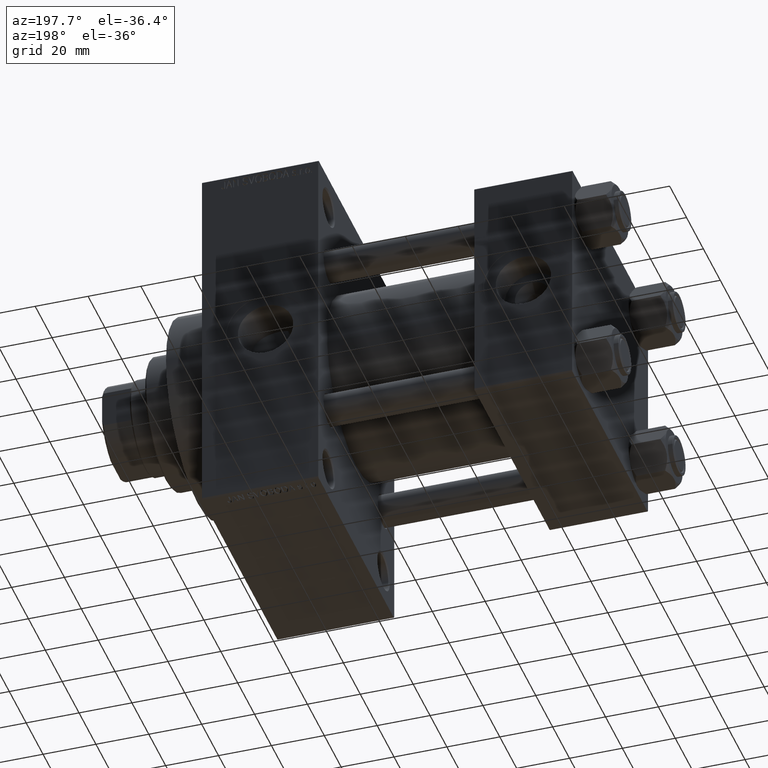
[diagram: clean part render]
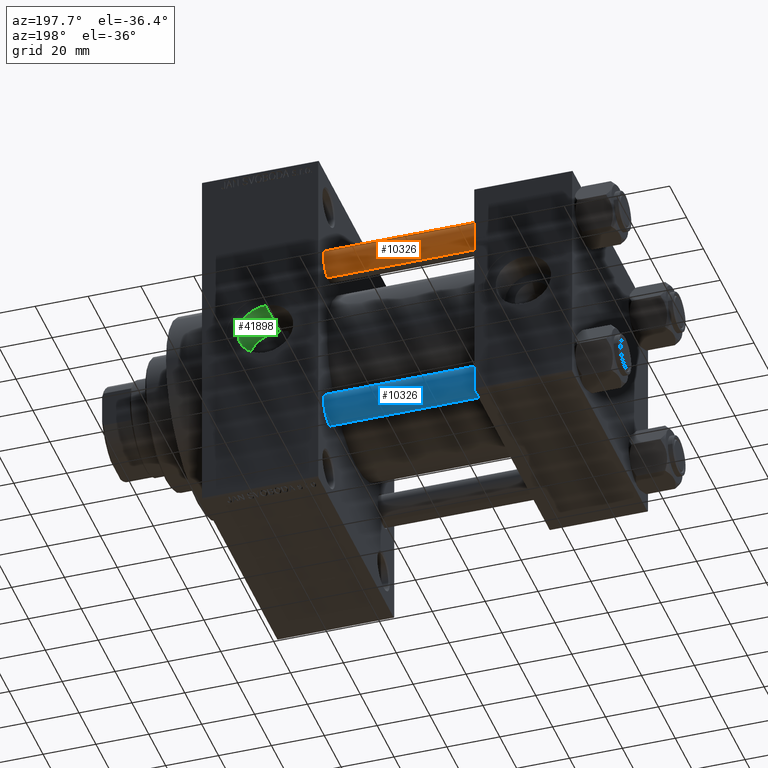
[diagram: same view with three faces highlighted in distinct colors, each labeled with its STEP entity id]
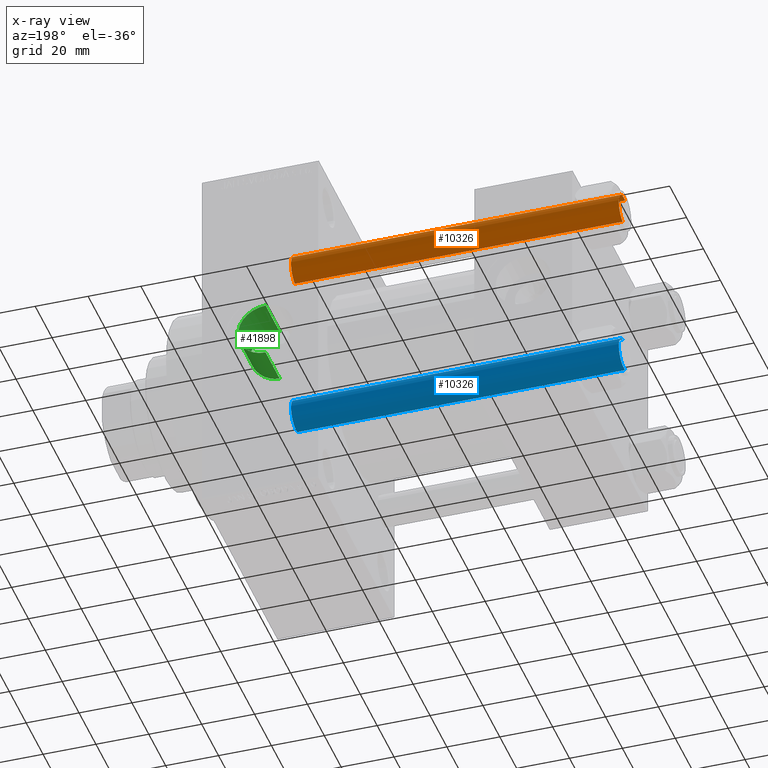
[diagram: x-ray of the same camera — body ghosted, the three highlighted faces saturated]
A machine part, auxiliary view with three faces highlighted in distinct colors.
The next image is the same camera in x-ray (body ghosted, the three faces saturated) — at least one of them is partly hidden behind the body in this view.
Their STEP definitions:

[orange] entity #10326 — the highlighted cylindrical surface (edge-blend (fillet) strip) has radius 6 mm, axis along (-1, -0, 0).
#967 = EDGE_CURVE ( 'NONE', #34737, #13620, #20077, .T. ) ;
#1158 = CARTESIAN_POINT ( 'NONE',  ( -6.000000000000000888, 0.000000000000000000, 125.0000000000000000 ) ) ;
#1859 = DIRECTION ( 'NONE',  ( -0.000000000000000000, -0.000000000000000000, -1.000000000000000000 ) ) ;
#3527 = ORIENTED_EDGE ( 'NONE', *, *, #8652, .T. ) ;
#5830 = FACE_OUTER_BOUND ( 'NONE', #13316, .T. ) ;
#6548 = AXIS2_PLACEMENT_3D ( 'NONE', #12973, #23690, #30395 ) ;
#7094 = VECTOR ( 'NONE', #31538, 1000.000000000000000 ) ;
#8652 = EDGE_CURVE ( 'NONE', #10115, #34737, #9495, .T. ) ;
#8791 = VECTOR ( 'NONE', #1859, 1000.000000000000000 ) ;
#9380 = CARTESIAN_POINT ( 'NONE',  ( 0.000000000000000000, 0.000000000000000000, 124.5000000000000000 ) ) ;
#9495 = CIRCLE ( 'NONE', #10258, 6.000000000000000888 ) ;
#10115 = VERTEX_POINT ( 'NONE', #20240 ) ;
#10258 = AXIS2_PLACEMENT_3D ( 'NONE', #9380, #23922, #38509 ) ;
#10326 = ADVANCED_FACE ( 'NONE', ( #5830 ), #27035, .T. ) ;
#11024 = ORIENTED_EDGE ( 'NONE', *, *, #34959, .F. ) ;
#11297 = ORIENTED_EDGE ( 'NONE', *, *, #11779, .T. ) ;
#11779 = EDGE_CURVE ( 'NONE', #13620, #24682, #22518, .T. ) ;
#12973 = CARTESIAN_POINT ( 'NONE',  ( 0.000000000000000000, 0.000000000000000000, 125.0000000000000000 ) ) ;
#13316 = EDGE_LOOP ( 'NONE', ( #3527, #39089, #11297, #11024 ) ) ;
#13620 = VERTEX_POINT ( 'NONE', #46528 ) ;
#19686 = DIRECTION ( 'NONE',  ( -0.000000000000000000, -0.000000000000000000, 1.000000000000000000 ) ) ;
#20077 = LINE ( 'NONE', #27717, #7094 ) ;
#20240 = CARTESIAN_POINT ( 'NONE',  ( -6.000000000000000888, 0.000000000000000000, 124.5000000000000000 ) ) ;
#21026 = AXIS2_PLACEMENT_3D ( 'NONE', #33795, #19686, #34263 ) ;
#21634 = CARTESIAN_POINT ( 'NONE',  ( -6.000000000000000888, 0.000000000000000000, 0.4999999999999865663 ) ) ;
#22518 = CIRCLE ( 'NONE', #21026, 6.000000000000000888 ) ;
#23690 = DIRECTION ( 'NONE',  ( -0.000000000000000000, -0.000000000000000000, -1.000000000000000000 ) ) ;
#23922 = DIRECTION ( 'NONE',  ( 0.000000000000000000, 0.000000000000000000, -1.000000000000000000 ) ) ;
#24562 = CARTESIAN_POINT ( 'NONE',  ( 6.000000000000000888, 7.347880794884120722E-16, 124.5000000000000000 ) ) ;
#24682 = VERTEX_POINT ( 'NONE', #21634 ) ;
#27035 = CYLINDRICAL_SURFACE ( 'NONE', #6548, 6.000000000000000888 ) ;
#27717 = CARTESIAN_POINT ( 'NONE',  ( 6.000000000000000888, 7.347880794884120722E-16, 125.0000000000000000 ) ) ;
#30395 = DIRECTION ( 'NONE',  ( -1.000000000000000000, 0.000000000000000000, 0.000000000000000000 ) ) ;
#31538 = DIRECTION ( 'NONE',  ( -0.000000000000000000, -0.000000000000000000, -1.000000000000000000 ) ) ;
#33795 = CARTESIAN_POINT ( 'NONE',  ( 0.000000000000000000, 0.000000000000000000, 0.4999999999999865663 ) ) ;
#34263 = DIRECTION ( 'NONE',  ( 1.000000000000000000, 0.000000000000000000, 0.000000000000000000 ) ) ;
#34737 = VERTEX_POINT ( 'NONE', #24562 ) ;
#34959 = EDGE_CURVE ( 'NONE', #10115, #24682, #44616, .T. ) ;
#38509 = DIRECTION ( 'NONE',  ( 1.000000000000000000, 0.000000000000000000, 0.000000000000000000 ) ) ;
#39089 = ORIENTED_EDGE ( 'NONE', *, *, #967, .T. ) ;
#44616 = LINE ( 'NONE', #1158, #8791 ) ;
#46528 = CARTESIAN_POINT ( 'NONE',  ( 6.000000000000000888, 7.347880794884120722E-16, 0.4999999999999865663 ) ) ;

[blue] entity #10326 — the highlighted cylindrical surface (edge-blend (fillet) strip) has radius 6 mm, axis along (1, -0, 0).
#967 = EDGE_CURVE ( 'NONE', #34737, #13620, #20077, .T. ) ;
#1158 = CARTESIAN_POINT ( 'NONE',  ( -6.000000000000000888, 0.000000000000000000, 125.0000000000000000 ) ) ;
#1859 = DIRECTION ( 'NONE',  ( -0.000000000000000000, -0.000000000000000000, -1.000000000000000000 ) ) ;
#3527 = ORIENTED_EDGE ( 'NONE', *, *, #8652, .T. ) ;
#5830 = FACE_OUTER_BOUND ( 'NONE', #13316, .T. ) ;
#6548 = AXIS2_PLACEMENT_3D ( 'NONE', #12973, #23690, #30395 ) ;
#7094 = VECTOR ( 'NONE', #31538, 1000.000000000000000 ) ;
#8652 = EDGE_CURVE ( 'NONE', #10115, #34737, #9495, .T. ) ;
#8791 = VECTOR ( 'NONE', #1859, 1000.000000000000000 ) ;
#9380 = CARTESIAN_POINT ( 'NONE',  ( 0.000000000000000000, 0.000000000000000000, 124.5000000000000000 ) ) ;
#9495 = CIRCLE ( 'NONE', #10258, 6.000000000000000888 ) ;
#10115 = VERTEX_POINT ( 'NONE', #20240 ) ;
#10258 = AXIS2_PLACEMENT_3D ( 'NONE', #9380, #23922, #38509 ) ;
#10326 = ADVANCED_FACE ( 'NONE', ( #5830 ), #27035, .T. ) ;
#11024 = ORIENTED_EDGE ( 'NONE', *, *, #34959, .F. ) ;
#11297 = ORIENTED_EDGE ( 'NONE', *, *, #11779, .T. ) ;
#11779 = EDGE_CURVE ( 'NONE', #13620, #24682, #22518, .T. ) ;
#12973 = CARTESIAN_POINT ( 'NONE',  ( 0.000000000000000000, 0.000000000000000000, 125.0000000000000000 ) ) ;
#13316 = EDGE_LOOP ( 'NONE', ( #3527, #39089, #11297, #11024 ) ) ;
#13620 = VERTEX_POINT ( 'NONE', #46528 ) ;
#19686 = DIRECTION ( 'NONE',  ( -0.000000000000000000, -0.000000000000000000, 1.000000000000000000 ) ) ;
#20077 = LINE ( 'NONE', #27717, #7094 ) ;
#20240 = CARTESIAN_POINT ( 'NONE',  ( -6.000000000000000888, 0.000000000000000000, 124.5000000000000000 ) ) ;
#21026 = AXIS2_PLACEMENT_3D ( 'NONE', #33795, #19686, #34263 ) ;
#21634 = CARTESIAN_POINT ( 'NONE',  ( -6.000000000000000888, 0.000000000000000000, 0.4999999999999865663 ) ) ;
#22518 = CIRCLE ( 'NONE', #21026, 6.000000000000000888 ) ;
#23690 = DIRECTION ( 'NONE',  ( -0.000000000000000000, -0.000000000000000000, -1.000000000000000000 ) ) ;
#23922 = DIRECTION ( 'NONE',  ( 0.000000000000000000, 0.000000000000000000, -1.000000000000000000 ) ) ;
#24562 = CARTESIAN_POINT ( 'NONE',  ( 6.000000000000000888, 7.347880794884120722E-16, 124.5000000000000000 ) ) ;
#24682 = VERTEX_POINT ( 'NONE', #21634 ) ;
#27035 = CYLINDRICAL_SURFACE ( 'NONE', #6548, 6.000000000000000888 ) ;
#27717 = CARTESIAN_POINT ( 'NONE',  ( 6.000000000000000888, 7.347880794884120722E-16, 125.0000000000000000 ) ) ;
#30395 = DIRECTION ( 'NONE',  ( -1.000000000000000000, 0.000000000000000000, 0.000000000000000000 ) ) ;
#31538 = DIRECTION ( 'NONE',  ( -0.000000000000000000, -0.000000000000000000, -1.000000000000000000 ) ) ;
#33795 = CARTESIAN_POINT ( 'NONE',  ( 0.000000000000000000, 0.000000000000000000, 0.4999999999999865663 ) ) ;
#34263 = DIRECTION ( 'NONE',  ( 1.000000000000000000, 0.000000000000000000, 0.000000000000000000 ) ) ;
#34737 = VERTEX_POINT ( 'NONE', #24562 ) ;
#34959 = EDGE_CURVE ( 'NONE', #10115, #24682, #44616, .T. ) ;
#38509 = DIRECTION ( 'NONE',  ( 1.000000000000000000, 0.000000000000000000, 0.000000000000000000 ) ) ;
#39089 = ORIENTED_EDGE ( 'NONE', *, *, #967, .T. ) ;
#44616 = LINE ( 'NONE', #1158, #8791 ) ;
#46528 = CARTESIAN_POINT ( 'NONE',  ( 6.000000000000000888, 7.347880794884120722E-16, 0.4999999999999865663 ) ) ;

[green] entity #41898 — the highlighted cylindrical surface (edge-blend (fillet) strip) has radius 10.48 mm, axis along (0, 1, 0).
#228 = CARTESIAN_POINT ( 'NONE',  ( 116.0000000000000000, 28.10995553180402595, -10.48000000000000220 ) ) ;
#1271 = CARTESIAN_POINT ( 'NONE',  ( 126.4119334145255067, 29.97602025324989583, 1.377942522026811778 ) ) ;
#1728 = CARTESIAN_POINT ( 'NONE',  ( 123.8917107446759474, 29.19304966441860927, 6.928961920144671716 ) ) ;
#1836 = FACE_OUTER_BOUND ( 'NONE', #19762, .T. ) ;
#2215 = CARTESIAN_POINT ( 'NONE',  ( 116.3438730021886443, 28.10995553180402595, -10.48000000000000753 ) ) ;
#2540 = VERTEX_POINT ( 'NONE', #34241 ) ;
#2559 = DIRECTION ( 'NONE',  ( -0.000000000000000000, 1.000000000000000000, -0.000000000000000000 ) ) ;
#3273 = LINE ( 'NONE', #35963, #33228 ) ;
#4851 = CARTESIAN_POINT ( 'NONE',  ( 122.1182821996174681, 28.76674563627389247, 8.515509313587612539 ) ) ;
#5015 = CARTESIAN_POINT ( 'NONE',  ( 116.0000000000000000, 44.80000000000001847, -2.198945251238207943E-15 ) ) ;
#5089 = CARTESIAN_POINT ( 'NONE',  ( 118.3951681404155210, 28.20981294759199898, 10.20840888712403682 ) ) ;
#5180 = CIRCLE ( 'NONE', #47147, 10.48000000000000043 ) ;
#5323 = CARTESIAN_POINT ( 'NONE',  ( 117.3845237662672076, 28.13600843276157448, 10.41084356096757446 ) ) ;
#5556 = CARTESIAN_POINT ( 'NONE',  ( 121.2538723618131655, 28.59517209534081417, -9.074427182106704848 ) ) ;
#5799 = CARTESIAN_POINT ( 'NONE',  ( 116.0000000000000000, 28.10995553180402595, -10.48000000000000220 ) ) ;
#6176 = DIRECTION ( 'NONE',  ( -0.000000000000000000, 1.000000000000000000, -0.000000000000000000 ) ) ;
#6270 = CARTESIAN_POINT ( 'NONE',  ( 123.6452155958480859, 29.13013352623691787, -7.176134000890634468 ) ) ;
#7978 = CARTESIAN_POINT ( 'NONE',  ( 120.6664021070156707, 28.48775938261396590, 9.408788335372456402 ) ) ;
#8212 = CARTESIAN_POINT ( 'NONE',  ( 125.9217316417465327, 29.80941683571757395, 3.392461908593601194 ) ) ;
#8432 = CARTESIAN_POINT ( 'NONE',  ( 124.3253861848219373, 29.31464168039805784, 6.402397357205709127 ) ) ;
#8968 = EDGE_CURVE ( 'NONE', #21413, #2540, #24284, .T. ) ;
#9364 = CARTESIAN_POINT ( 'NONE',  ( 125.9399912239310453, 29.81458687334005120, -3.392117035502130840 ) ) ;
#9566 = ORIENTED_EDGE ( 'NONE', *, *, #36628, .T. ) ;
#12228 = CARTESIAN_POINT ( 'NONE',  ( 126.2088621083209432, 29.90629404900236921, 2.393471372070395287 ) ) ;
#12702 = CARTESIAN_POINT ( 'NONE',  ( 119.3944568409847733, 28.30729626029973645, -9.938490869674263095 ) ) ;
#12943 = CARTESIAN_POINT ( 'NONE',  ( 126.1400674918413927, 29.88267782535193717, -2.735376480645546504 ) ) ;
#13349 = ORIENTED_EDGE ( 'NONE', *, *, #8968, .F. ) ;
#14936 = CARTESIAN_POINT ( 'NONE',  ( 116.0000000000000000, 28.10995553180402950, 10.47999999999999865 ) ) ;
#15349 = CARTESIAN_POINT ( 'NONE',  ( 125.4118318432556549, 29.64271601913478094, 4.659776581799506268 ) ) ;
#15811 = CARTESIAN_POINT ( 'NONE',  ( 126.3942240619415855, 29.97012602456189612, -1.382554006488357912 ) ) ;
#15906 = CYLINDRICAL_SURFACE ( 'NONE', #25002, 10.48000000000000043 ) ;
#16266 = CARTESIAN_POINT ( 'NONE',  ( 122.3950967947522912, 28.82709093977712556, 8.309601500369888427 ) ) ;
#16375 = DIRECTION ( 'NONE',  ( 0.000000000000000000, 0.000000000000000000, 1.000000000000000000 ) ) ;
#16980 = CARTESIAN_POINT ( 'NONE',  ( 122.3991954878801067, 28.82380471925722532, -8.327394824909754689 ) ) ;
#18678 = ORIENTED_EDGE ( 'NONE', *, *, #41668, .T. ) ;
#19383 = CARTESIAN_POINT ( 'NONE',  ( 126.4801199113428396, 30.00004188902684987, -0.3416054811791413015 ) ) ;
#19617 = CARTESIAN_POINT ( 'NONE',  ( 118.7290047839929912, 28.24020088778831905, 10.12435328880594554 ) ) ;
#19762 = EDGE_LOOP ( 'NONE', ( #13349, #47246, #9566, #18678 ) ) ;
#20084 = CARTESIAN_POINT ( 'NONE',  ( 125.0829805892810498, 29.53877363973344572, -5.271871285477989666 ) ) ;
#21036 = CARTESIAN_POINT ( 'NONE',  ( 124.3114165177487820, 29.31220912400723577, -6.392798821075968085 ) ) ;
#21413 = VERTEX_POINT ( 'NONE', #228 ) ;
#22502 = CARTESIAN_POINT ( 'NONE',  ( 125.0902213596345689, 29.54095946462917155, 5.260287319037080245 ) ) ;
#22730 = CARTESIAN_POINT ( 'NONE',  ( 126.4797582609246120, 29.99991555248753272, 0.6941883290317075739 ) ) ;
#22958 = CARTESIAN_POINT ( 'NONE',  ( 125.8054432238869822, 29.77080659644961003, 3.714849565276028276 ) ) ;
#23664 = CARTESIAN_POINT ( 'NONE',  ( 123.8766334625353949, 29.19190493786176432, -6.921428074835843880 ) ) ;
#23900 = CARTESIAN_POINT ( 'NONE',  ( 124.5146658568484668, 29.37067223596217502, -6.119359129450981705 ) ) ;
#24103 = VERTEX_POINT ( 'NONE', #14936 ) ;
#24144 = CARTESIAN_POINT ( 'NONE',  ( 117.3747204287125783, 28.14145658298057029, -10.39517839700973489 ) ) ;
#24284 = LINE ( 'NONE', #38866, #27771 ) ;
#24617 = CARTESIAN_POINT ( 'NONE',  ( 122.9226840027825887, 28.94609101070397728, -7.897476117125369122 ) ) ;
#25002 = AXIS2_PLACEMENT_3D ( 'NONE', #31178, #33830, #16375 ) ;
#26085 = CARTESIAN_POINT ( 'NONE',  ( 119.3905241761370490, 28.31178435317268693, 9.922416159315377016 ) ) ;
#26549 = CARTESIAN_POINT ( 'NONE',  ( 116.0000000000000000, 28.10995553180402950, 10.47999999999999865 ) ) ;
#26697 = DIRECTION ( 'NONE',  ( 0.000000000000000000, 0.000000000000000000, 1.000000000000000000 ) ) ;
#26927 = DIRECTION ( 'NONE',  ( 0.000000000000000000, 1.000000000000000000, 0.000000000000000000 ) ) ;
#27489 = CARTESIAN_POINT ( 'NONE',  ( 121.5495707240801124, 28.65118564949816715, -8.896564878869938298 ) ) ;
#27771 = VECTOR ( 'NONE', #6176, 1000.000000000000000 ) ;
#29903 = CARTESIAN_POINT ( 'NONE',  ( 126.1234663938197968, 29.87716762247597302, 2.732212426824471851 ) ) ;
#31136 = CARTESIAN_POINT ( 'NONE',  ( 116.0000000000000000, 44.80000000000001847, 10.47999999999999865 ) ) ;
#31178 = CARTESIAN_POINT ( 'NONE',  ( 116.0000000000000000, -29.64191626734007201, -2.198945251238207943E-15 ) ) ;
#31544 = CARTESIAN_POINT ( 'NONE',  ( 125.4072711420142809, 29.64123673593073960, -4.670453208736268458 ) ) ;
#33228 = VECTOR ( 'NONE', #2559, 1000.000000000000000 ) ;
#33830 = DIRECTION ( 'NONE',  ( -0.000000000000000000, 1.000000000000000000, -0.000000000000000000 ) ) ;
#33962 = CARTESIAN_POINT ( 'NONE',  ( 126.4630151315455606, 29.99405350600730458, -0.6904084209729824950 ) ) ;
#33992 = VERTEX_POINT ( 'NONE', #31136 ) ;
#34191 = CARTESIAN_POINT ( 'NONE',  ( 122.9218863494081120, 28.94851325491607952, 7.876181147934429916 ) ) ;
#34241 = CARTESIAN_POINT ( 'NONE',  ( 116.0000000000000000, 44.80000000000001847, -10.48000000000000220 ) ) ;
#34421 = CARTESIAN_POINT ( 'NONE',  ( 123.1731662640724210, 29.00983069254146685, 7.647933622233230366 ) ) ;
#35963 = CARTESIAN_POINT ( 'NONE',  ( 116.0000000000000000, -29.64191626734007201, 10.47999999999999865 ) ) ;
#36628 = EDGE_CURVE ( 'NONE', #24103, #33992, #3273, .T. ) ;
#37111 = EDGE_CURVE ( 'NONE', #24103, #21413, #44823, .T. ) ;
#37548 = CARTESIAN_POINT ( 'NONE',  ( 116.6980899380639727, 28.10995553180403661, 10.47999999999999865 ) ) ;
#38248 = CARTESIAN_POINT ( 'NONE',  ( 120.3394417382619395, 28.44122229582507089, -9.545471696213173374 ) ) ;
#38489 = CARTESIAN_POINT ( 'NONE',  ( 120.6483450916582427, 28.49013521307115937, -9.399004808299563862 ) ) ;
#38866 = CARTESIAN_POINT ( 'NONE',  ( 116.0000000000000000, -29.64191626734007201, -10.48000000000000220 ) ) ;
#38965 = CARTESIAN_POINT ( 'NONE',  ( 118.7402809744361321, 28.23506111628061532, -10.13915124372663001 ) ) ;
#40672 = CARTESIAN_POINT ( 'NONE',  ( 121.2662955552271455, 28.59360380551412817, 9.086475383822232743 ) ) ;
#41133 = CARTESIAN_POINT ( 'NONE',  ( 119.7170611001097882, 28.35291915705131061, 9.804662585683473708 ) ) ;
#41668 = EDGE_CURVE ( 'NONE', #33992, #2540, #5180, .T. ) ;
#41829 = CARTESIAN_POINT ( 'NONE',  ( 117.7201323274241815, 28.16049430193229242, -10.34368535468164119 ) ) ;
#41898 = ADVANCED_FACE ( 'NONE', ( #1836 ), #15906, .F. ) ;
#44823 = B_SPLINE_CURVE_WITH_KNOTS ( 'NONE', 3,
 ( #26549, #37548, #5323, #5089, #19617, #26085, #41133, #7978, #40672, #4851, #16266, #34191, #34421, #1728, #8432, #22502, #15349, #22958, #8212, #29903, #12228, #1271, #22730, #19383, #33962, #15811, #44950, #12943, #9364, #31544, #20084, #23900, #21036, #23664, #6270, #24617, #16980, #27489, #5556, #38489, #38248, #12702, #38965, #41829, #24144, #45889, #2215, #5799 ),
 .UNSPECIFIED., .F., .F.,
 ( 4, 2, 2, 2, 2, 2, 2, 2, 2, 2, 2, 2, 2, 2, 2, 2, 2, 2, 2, 2, 2, 2, 2, 4 ),
 ( 0.003306571874640978469, 0.005371767648722604663, 0.006404365535763416675, 0.007436963422804228688, 0.009502159196885892611, 0.01053475708392670809, 0.01156735497096752531, 0.01363255074504918576, 0.01569774651913082020, 0.01673034440617165650, 0.01776294229321248933, 0.01982813806729416192, 0.02086073595433499822, 0.02189333384137583105, 0.02395852961545748283, 0.02602372538953913461, 0.02705632327657996397, 0.02808892116362078639, 0.03015411693770241389, 0.03118671482474324325, 0.03221931271178406914, 0.03428450848586572786, 0.03531710637290653987, 0.03634970425994735188 ),
 .UNSPECIFIED. ) ;
#44950 = CARTESIAN_POINT ( 'NONE',  ( 126.3429318193838924, 29.95232553474092185, -1.724057622897176678 ) ) ;
#45889 = CARTESIAN_POINT ( 'NONE',  ( 116.6875923004624980, 28.11626763150323782, -10.46311650470940435 ) ) ;
#47147 = AXIS2_PLACEMENT_3D ( 'NONE', #5015, #26927, #26697 ) ;
#47246 = ORIENTED_EDGE ( 'NONE', *, *, #37111, .F. ) ;